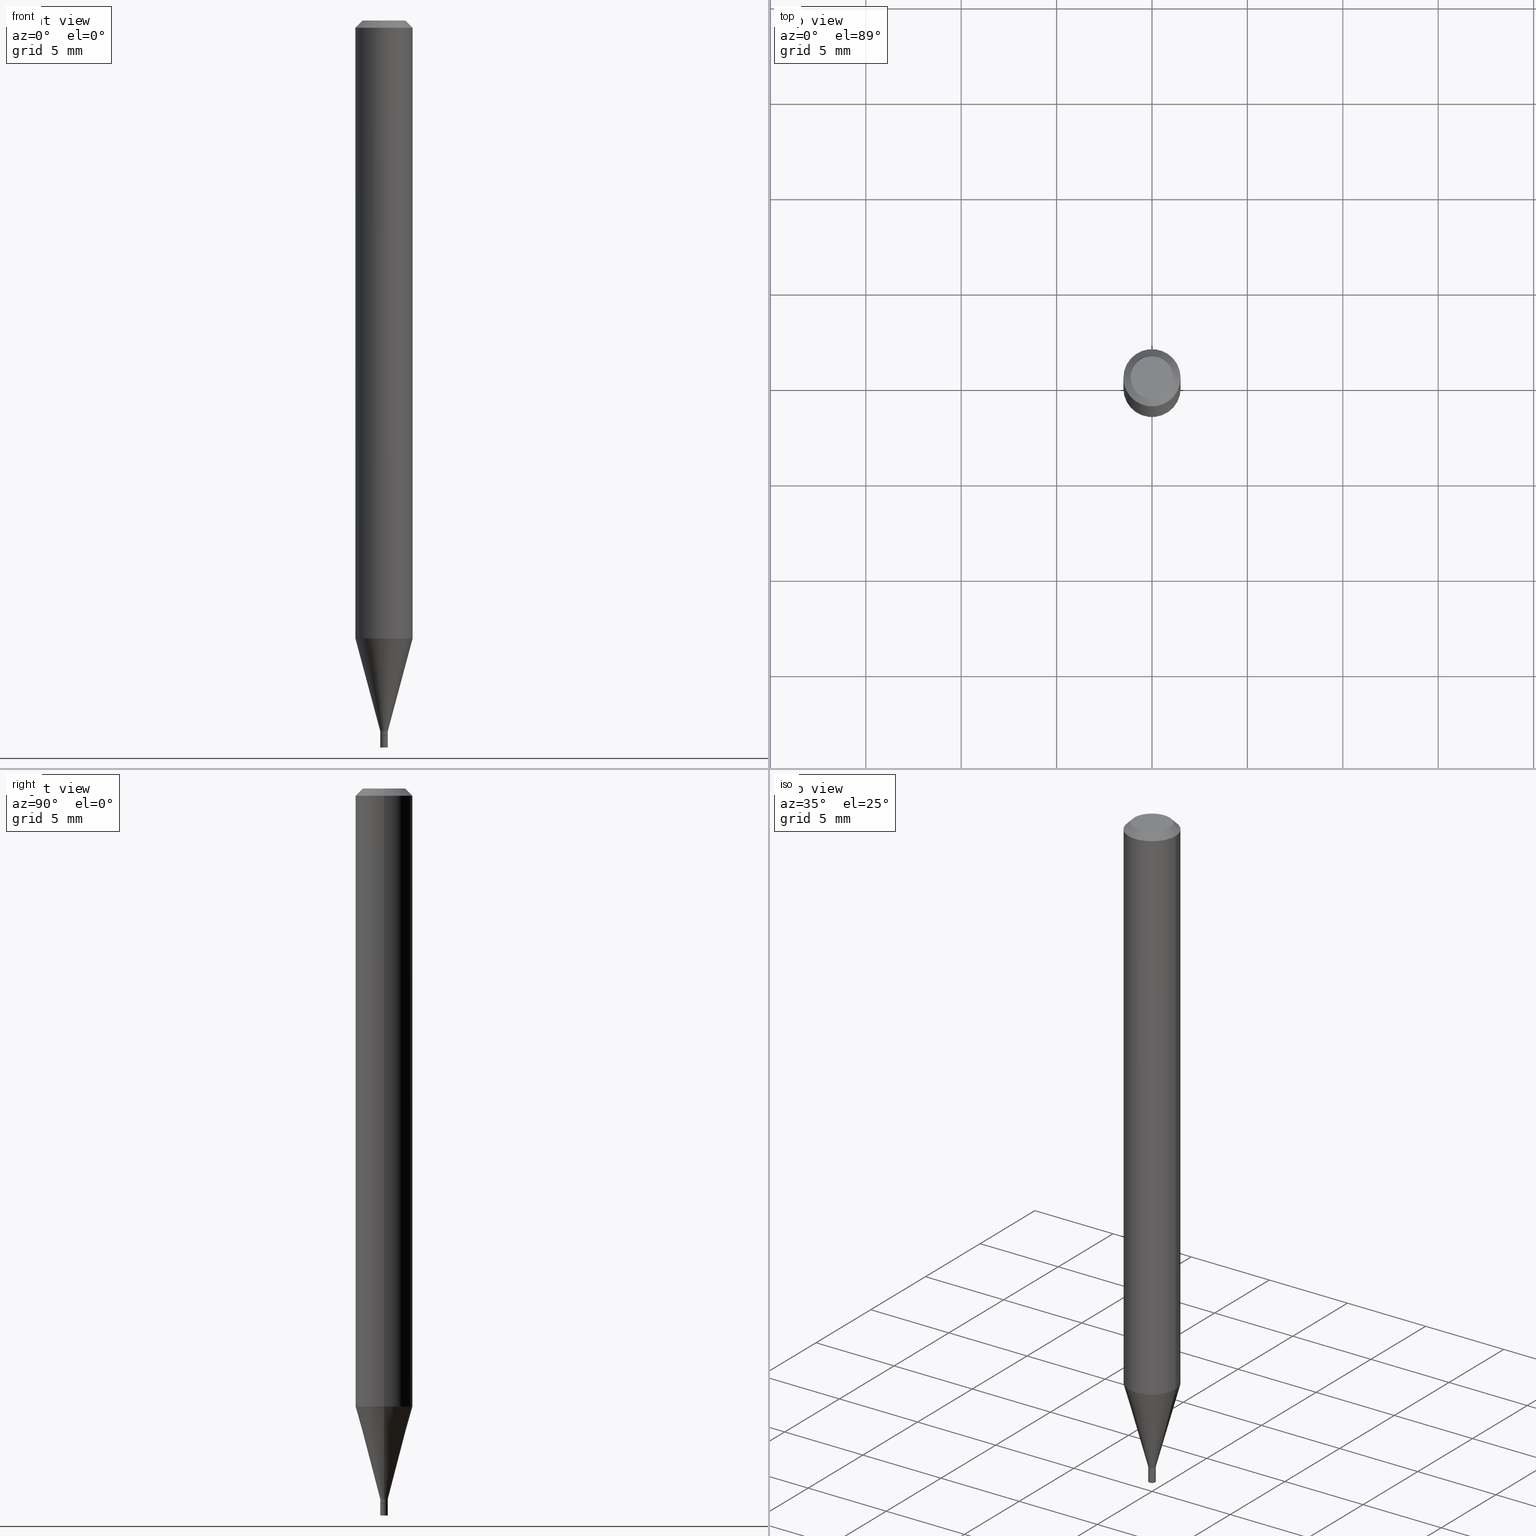
[diagram: canonical four-view strip — front | top / right | iso, engineering-drawing reading convention]
A machine part, canonical four-view strip (front | top / right | iso — engineering-drawing reading convention). The complete STEP part file that produces these views, byte-faithful:
ISO-10303-21;
HEADER;
FILE_DESCRIPTION (( 'STEP AP203' ),
    '1' );
FILE_NAME ('02803.STEP',
    '2024-03-18T21:40:27',
    ( '' ),
    ( '' ),
    'SwSTEP 2.0',
    'SolidWorks 2023',
    '' );
FILE_SCHEMA (( 'CONFIG_CONTROL_DESIGN' ));
ENDSEC;

DATA;
#1 = DIRECTION ( 'NONE',  ( 1.000000000000000000, -6.982962677686273021E-15, 0.000000000000000000 ) ) ;
#2 = CC_DESIGN_SECURITY_CLASSIFICATION ( #339, ( #188 ) ) ;
#3 = AXIS2_PLACEMENT_3D ( 'NONE', #393, #230, #124 ) ;
#4 = ORIENTED_EDGE ( 'NONE', *, *, #37, .F. ) ;
#5 = DIRECTION ( 'NONE',  ( -2.445468806185136597E-29, 3.491481338843145583E-15, 1.000000000000000000 ) ) ;
#6 = EDGE_CURVE ( 'NONE', #281, #309, #338, .T. ) ;
#7 = FACE_OUTER_BOUND ( 'NONE', #302, .T. ) ;
#8 = EDGE_LOOP ( 'NONE', ( #165, #24 ) ) ;
#9 = FACE_OUTER_BOUND ( 'NONE', #226, .T. ) ;
#10 = CARTESIAN_POINT ( 'NONE',  ( 0.007849999999999919542, -5.173327899763888780E-15, -1.466000000000000192 ) ) ;
#11 = DIRECTION ( 'NONE',  ( -2.438088387897960049E-29, 3.491481338843145188E-15, 1.000000000000000000 ) ) ;
#12 = ORIENTED_EDGE ( 'NONE', *, *, #256, .F. ) ;
#13 = CARTESIAN_POINT ( 'NONE',  ( -0.05904999999999999832, 3.599717260347268549E-16, -0.01499999999999999944 ) ) ;
#14 = LOCAL_TIME ( 17, 40, 27.00000000000000000, #141 ) ;
#15 = CARTESIAN_POINT ( 'NONE',  ( 0.000000000000000000, 0.000000000000000000, 0.000000000000000000 ) ) ;
#16 = EDGE_CURVE ( 'NONE', #135, #127, #239, .T. ) ;
#17 = ORIENTED_EDGE ( 'NONE', *, *, #349, .T. ) ;
#18 = DIRECTION ( 'NONE',  ( 1.000000000000000000, -6.982962677686266711E-15, 0.000000000000000000 ) ) ;
#19 = LINE ( 'NONE', #325, #287 ) ;
#20 = EDGE_LOOP ( 'NONE', ( #17, #375, #168, #12 ) ) ;
#21 = DIRECTION ( 'NONE',  ( -2.445468806185136877E-29, 3.491481338843145188E-15, 1.000000000000000000 ) ) ;
#22 = CARTESIAN_POINT ( 'NONE',  ( 3.576687321579069994E-29, -5.368277968210015545E-15, -1.500000000000000222 ) ) ;
#23 = CIRCLE ( 'NONE', #44, 0.05904999999999999832 ) ;
#24 = ORIENTED_EDGE ( 'NONE', *, *, #320, .F. ) ;
#25 = ADVANCED_FACE ( 'NONE', ( #412 ), #137, .T. ) ;
#26 = CARTESIAN_POINT ( 'NONE',  ( 3.668203209277704895E-29, -5.237222008264718177E-15, -1.500000000000000222 ) ) ;
#27 = DIRECTION ( 'NONE',  ( -2.438088387897960049E-29, 3.491481338843145188E-15, 1.000000000000000000 ) ) ;
#28 = CARTESIAN_POINT ( 'NONE',  ( 3.585057269867410650E-29, -5.118511642744051990E-15, -1.466000000000000192 ) ) ;
#29 = DIRECTION ( 'NONE',  ( 1.000000000000000000, -6.982962677686261189E-15, 0.000000000000000000 ) ) ;
#30 = AXIS2_PLACEMENT_3D ( 'NONE', #228, #191, #45 ) ;
#31 = AXIS2_PLACEMENT_3D ( 'NONE', #359, #43, #262 ) ;
#32 = SECURITY_CLASSIFICATION_LEVEL ( 'unclassified' ) ;
#33 = DATE_TIME_ROLE ( 'creation_date' ) ;
#34 = DIRECTION ( 'NONE',  ( 1.000000000000000000, -6.982962677686261189E-15, 0.000000000000000000 ) ) ;
#35 = PERSON_AND_ORGANIZATION ( #414, #96 ) ;
#36 = CIRCLE ( 'NONE', #312, 0.007849999999999999339 ) ;
#37 = EDGE_CURVE ( 'NONE', #390, #127, #278, .T. ) ;
#38 = CARTESIAN_POINT ( 'NONE',  ( 3.610490145451736212E-29, -5.154823048668020053E-15, -1.476400000000000157 ) ) ;
#39 = CARTESIAN_POINT ( 'NONE',  ( -0.007849999999999919542, -5.062734037986884746E-15, -1.466000000000000192 ) ) ;
#40 = EDGE_CURVE ( 'NONE', #293, #87, #254, .T. ) ;
#41 = CONICAL_SURFACE ( 'NONE', #54, 0.05904999999999999832, 0.7853981633974522758 ) ;
#42 = ORIENTED_EDGE ( 'NONE', *, *, #142, .F. ) ;
#43 = DIRECTION ( 'NONE',  ( -2.445468806185136597E-29, 3.491481338843145583E-15, 1.000000000000000000 ) ) ;
#44 = AXIS2_PLACEMENT_3D ( 'NONE', #327, #442, #18 ) ;
#45 = DIRECTION ( 'NONE',  ( 1.000000000000000000, -6.982962677686267499E-15, 4.876176775795936353E-29 ) ) ;
#46 = ORIENTED_EDGE ( 'NONE', *, *, #179, .F. ) ;
#47 = LENGTH_MEASURE_WITH_UNIT ( LENGTH_MEASURE( 0.02539999999999999897 ), #88 );
#48 = DIRECTION ( 'NONE',  ( -2.445468806185136877E-29, 3.491481338843145188E-15, 1.000000000000000000 ) ) ;
#49 = ORIENTED_EDGE ( 'NONE', *, *, #40, .F. ) ;
#50 = DIRECTION ( 'NONE',  ( -0.7071067811865503483, 2.468850131082286248E-15, -0.7071067811865446862 ) ) ;
#51 = LINE ( 'NONE', #232, #406 ) ;
#52 = ORIENTED_EDGE ( 'NONE', *, *, #6, .T. ) ;
#53 = DIRECTION ( 'NONE',  ( -0.2588190451025214611, 5.211531920934551042E-15, 0.9659258262890682012 ) ) ;
#54 = AXIS2_PLACEMENT_3D ( 'NONE', #413, #379, #336 ) ;
#55 = LOCAL_TIME ( 17, 40, 27.00000000000000000, #334 ) ;
#56 = CC_DESIGN_PERSON_AND_ORGANIZATION_ASSIGNMENT ( #178, #464, ( #339 ) ) ;
#57 = CARTESIAN_POINT ( 'NONE',  ( 0.007849999999999999339, -5.292038265284556544E-15, -1.500000000000000222 ) ) ;
#58 = VERTEX_POINT ( 'NONE', #101 ) ;
#59 = CARTESIAN_POINT ( 'NONE',  ( -0.007849999999999921277, -5.097299703241432095E-15, -1.475900000000000212 ) ) ;
#60 = DIRECTION ( 'NONE',  ( -2.445468806185136877E-29, 3.491481338843145188E-15, 1.000000000000000000 ) ) ;
#61 = FACE_OUTER_BOUND ( 'NONE', #155, .T. ) ;
#62 = ADVANCED_FACE ( 'NONE', ( #416 ), #205, .F. ) ;
#63 = APPROVAL_PERSON_ORGANIZATION ( #317, #380, #147 ) ;
#64 = DIRECTION ( 'NONE',  ( 1.000000000000000000, -6.982962677686265922E-15, 4.888540261209747396E-29 ) ) ;
#65 = DIRECTION ( 'NONE',  ( -2.445468806185136597E-29, 3.491481338843145583E-15, 1.000000000000000000 ) ) ;
#66 = ADVANCED_FACE ( 'NONE', ( #61 ), #384, .T. ) ;
#67 = DATE_AND_TIME ( #244, #260 ) ;
#68 = ADVANCED_BREP_SHAPE_REPRESENTATION ( '02803', ( #459, #146, #181 ), #288 ) ;
#69 = CARTESIAN_POINT ( 'NONE',  ( 0.007849999999999999339, -5.209639305687857631E-15, -1.476400000000000157 ) ) ;
#70 = APPROVAL ( #388, 'UNSPECIFIED' ) ;
#71 = CIRCLE ( 'NONE', #120, 0.007849999999999921277 ) ;
#72 = APPROVAL_DATE_TIME ( #314, #371 ) ;
#73 = APPROVAL_STATUS ( 'not_yet_approved' ) ;
#74 = CARTESIAN_POINT ( 'NONE',  ( 0.007349999999999998895, -5.206147824349013835E-15, -1.476400000000000157 ) ) ;
#75 = APPLICATION_PROTOCOL_DEFINITION ( 'international standard', 'config_control_design', 1994, #443 ) ;
#76 = EDGE_CURVE ( 'NONE', #308, #192, #382, .T. ) ;
#77 = AXIS2_PLACEMENT_3D ( 'NONE', #26, #457, #415 ) ;
#78 = ORIENTED_EDGE ( 'NONE', *, *, #420, .F. ) ;
#79 = EDGE_CURVE ( 'NONE', #87, #293, #427, .T. ) ;
#80 = ORIENTED_EDGE ( 'NONE', *, *, #343, .F. ) ;
#81 = DIRECTION ( 'NONE',  ( 1.000000000000000000, -6.982962677686273021E-15, 0.000000000000000000 ) ) ;
#82 = ADVANCED_FACE ( 'NONE', ( #340 ), #41, .T. ) ;
#83 = CLOSED_SHELL ( 'NONE', ( #132, #307, #25, #66, #337, #378, #169, #82, #356, #148, #463, #241 ) ) ;
#84 = ORIENTED_EDGE ( 'NONE', *, *, #104, .F. ) ;
#85 = LOCAL_TIME ( 17, 40, 27.00000000000000000, #350 ) ;
#86 = LINE ( 'NONE', #362, #437 ) ;
#87 = VERTEX_POINT ( 'NONE', #102 ) ;
#88 =( LENGTH_UNIT ( ) NAMED_UNIT ( * ) SI_UNIT ( $, .METRE. ) );
#89 = APPROVAL_DATE_TIME ( #398, #70 ) ;
#90 = CARTESIAN_POINT ( 'NONE',  ( 0.000000000000000000, 0.000000000000000000, 0.000000000000000000 ) ) ;
#91 = ORIENTED_EDGE ( 'NONE', *, *, #104, .T. ) ;
#92 = CARTESIAN_POINT ( 'NONE',  ( 0.05904999999999998445, -4.863699838449076344E-15, -1.274918998652473823 ) ) ;
#93 = CARTESIAN_POINT ( 'NONE',  ( 0.05904999999999999832, -4.647161662000212105E-16, -0.01499999999999999944 ) ) ;
#94 = ORIENTED_EDGE ( 'NONE', *, *, #367, .T. ) ;
#95 = VECTOR ( 'NONE', #303, 39.37007874015748143 ) ;
#96 = ORGANIZATION ( 'UNSPECIFIED', 'UNSPECIFIED', '' ) ;
#97 = SHAPE_DEFINITION_REPRESENTATION ( #449, #68 ) ;
#98 = CARTESIAN_POINT ( 'NONE',  ( 0.007849999999999919542, -5.481625701983663571E-17, 3.827798768999770704E-31 ) ) ;
#99 = DIRECTION ( 'NONE',  ( 1.000000000000000000, -6.982962677686266711E-15, 4.876176775795936353E-29 ) ) ;
#100 = DIRECTION ( 'NONE',  ( 1.000000000000000000, -6.982962677686265922E-15, 4.876176775795935793E-29 ) ) ;
#101 = CARTESIAN_POINT ( 'NONE',  ( -0.007849999999999999339, -5.140244923709201871E-15, -1.476400000000000157 ) ) ;
#102 = CARTESIAN_POINT ( 'NONE',  ( -0.007349999999999998895, -5.099948930415542507E-15, -1.476400000000000157 ) ) ;
#103 = CARTESIAN_POINT ( 'NONE',  ( 2.842653332627866660E-45, -4.058555577796679728E-31, -1.162416517208545723E-16 ) ) ;
#104 = EDGE_CURVE ( 'NONE', #261, #58, #107, .T. ) ;
#105 = DIRECTION ( 'NONE',  ( -2.445468806185136597E-29, 3.491481338843145583E-15, 1.000000000000000000 ) ) ;
#106 = APPROVAL_STATUS ( 'not_yet_approved' ) ;
#107 = CIRCLE ( 'NONE', #360, 0.007849999999999999339 ) ;
#108 = VECTOR ( 'NONE', #53, 39.37007874015747433 ) ;
#109 = DATE_AND_TIME ( #421, #14 ) ;
#110 = DIRECTION ( 'NONE',  ( -2.445468806185136597E-29, 3.491481338843145583E-15, 1.000000000000000000 ) ) ;
#111 = VERTEX_POINT ( 'NONE', #59 ) ;
#112 = CLOSED_SHELL ( 'NONE', ( #248, #62, #156, #439 ) ) ;
#113 = AXIS2_PLACEMENT_3D ( 'NONE', #153, #119, #221 ) ;
#114 = FACE_OUTER_BOUND ( 'NONE', #257, .T. ) ;
#115 = ORIENTED_EDGE ( 'NONE', *, *, #266, .T. ) ;
#116 = CARTESIAN_POINT ( 'NONE',  ( 0.007849999999999921277, -5.207893565018435339E-15, -1.475900000000000212 ) ) ;
#117 = CARTESIAN_POINT ( 'NONE',  ( 0.007849999999999919542, -5.173327899763888780E-15, -1.466000000000000192 ) ) ;
#118 = EDGE_LOOP ( 'NONE', ( #431, #363, #445, #458 ) ) ;
#119 = DIRECTION ( 'NONE',  ( -2.445468806185136597E-29, 3.491481338843145583E-15, 1.000000000000000000 ) ) ;
#120 = AXIS2_PLACEMENT_3D ( 'NONE', #357, #294, #267 ) ;
#121 = FACE_OUTER_BOUND ( 'NONE', #284, .T. ) ;
#122 = CARTESIAN_POINT ( 'NONE',  ( 0.007349999999999998895, -5.206147824349013835E-15, -1.476400000000000157 ) ) ;
#123 = ORIENTED_EDGE ( 'NONE', *, *, #352, .T. ) ;
#124 = DIRECTION ( 'NONE',  ( 1.000000000000000000, -6.982962677686327453E-15, 0.000000000000000000 ) ) ;
#125 = DIRECTION ( 'NONE',  ( -2.445468806185136597E-29, 3.491481338843145583E-15, 1.000000000000000000 ) ) ;
#126 = CC_DESIGN_PERSON_AND_ORGANIZATION_ASSIGNMENT ( #385, #184, ( #376 ) ) ;
#127 = VERTEX_POINT ( 'NONE', #93 ) ;
#128 = DIRECTION ( 'NONE',  ( 2.438088387897960049E-29, -3.491481338843145188E-15, -1.000000000000000000 ) ) ;
#129 = CARTESIAN_POINT ( 'NONE',  ( -0.05904999999999999832, 4.195754854663391478E-16, -2.904631170795521892E-30 ) ) ;
#130 = ORIENTED_EDGE ( 'NONE', *, *, #349, .F. ) ;
#131 = CONICAL_SURFACE ( 'NONE', #31, 0.007349999999999998895, 0.7853981633974718157 ) ;
#132 = ADVANCED_FACE ( 'NONE', ( #133 ), #373, .T. ) ;
#133 = FACE_OUTER_BOUND ( 'NONE', #20, .T. ) ;
#134 = VERTEX_POINT ( 'NONE', #57 ) ;
#135 = VERTEX_POINT ( 'NONE', #323 ) ;
#136 = CARTESIAN_POINT ( 'NONE',  ( 3.668203209277705088E-31, -5.237222008264718399E-17, -0.01499999999999999944 ) ) ;
#137 = CONICAL_SURFACE ( 'NONE', #372, 0.05904999999999999832, 0.7853981633974522758 ) ;
#138 = VECTOR ( 'NONE', #160, 39.37007874015748143 ) ;
#139 = EDGE_LOOP ( 'NONE', ( #400, #123, #274, #189 ) ) ;
#140 = CARTESIAN_POINT ( 'NONE',  ( 3.668203209277704895E-29, -5.237222008264718177E-15, -1.500000000000000222 ) ) ;
#141 = COORDINATED_UNIVERSAL_TIME_OFFSET ( 5, 0, .BEHIND. ) ;
#142 = EDGE_CURVE ( 'NONE', #111, #192, #86, .T. ) ;
#143 = VECTOR ( 'NONE', #60, 39.37007874015748143 ) ;
#144 = AXIS2_PLACEMENT_3D ( 'NONE', #331, #128, #300 ) ;
#145 = CALENDAR_DATE ( 2024, 18, 3 ) ;
#146 = MANIFOLD_SOLID_BREP ( 'Body-Move/Copy2[2]', #83 ) ;
#147 = APPROVAL_ROLE ( '' ) ;
#148 = ADVANCED_FACE ( 'NONE', ( #7 ), #454, .F. ) ;
#149 = AXIS2_PLACEMENT_3D ( 'NONE', #224, #407, #301 ) ;
#150 = APPROVAL_PERSON_ORGANIZATION ( #249, #70, #213 ) ;
#151 = CARTESIAN_POINT ( 'NONE',  ( -0.007849999999999999339, -5.140244923709201871E-15, -1.500000000000000222 ) ) ;
#152 = ORIENTED_EDGE ( 'NONE', *, *, #252, .T. ) ;
#153 = CARTESIAN_POINT ( 'NONE',  ( 2.842653332627866660E-45, -4.058555577796679728E-31, -1.162416517208545723E-16 ) ) ;
#154 = DIRECTION ( 'NONE',  ( -2.445468806185136597E-29, 3.491481338843145583E-15, 1.000000000000000000 ) ) ;
#155 = EDGE_LOOP ( 'NONE', ( #321, #152, #365, #4 ) ) ;
#156 = ADVANCED_FACE ( 'NONE', ( #377 ), #194, .T. ) ;
#157 = CYLINDRICAL_SURFACE ( 'NONE', #233, 0.05904999999999999832 ) ;
#158 = AXIS2_PLACEMENT_3D ( 'NONE', #22, #27, #237 ) ;
#159 = ORIENTED_EDGE ( 'NONE', *, *, #208, .T. ) ;
#160 = DIRECTION ( 'NONE',  ( 0.7071067811865503483, -7.319954787623265512E-15, -0.7071067811865446862 ) ) ;
#161 = CIRCLE ( 'NONE', #319, 0.05904999999999999832 ) ;
#162 = CC_DESIGN_PERSON_AND_ORGANIZATION_ASSIGNMENT ( #35, #347, ( #188 ) ) ;
#163 = DIRECTION ( 'NONE',  ( -2.445468806185136597E-29, 3.491481338843145583E-15, 1.000000000000000000 ) ) ;
#164 = DIRECTION ( 'NONE',  ( -2.445468806185136597E-29, 3.491481338843145583E-15, 1.000000000000000000 ) ) ;
#165 = ORIENTED_EDGE ( 'NONE', *, *, #266, .F. ) ;
#166 = DIRECTION ( 'NONE',  ( 1.000000000000000000, -6.982962677686274599E-15, 0.000000000000000000 ) ) ;
#167 = LINE ( 'NONE', #129, #272 ) ;
#168 = ORIENTED_EDGE ( 'NONE', *, *, #76, .F. ) ;
#169 = ADVANCED_FACE ( 'NONE', ( #259 ), #157, .T. ) ;
#170 = DIRECTION ( 'NONE',  ( -2.445468806185136877E-29, 3.491481338843145188E-15, 1.000000000000000000 ) ) ;
#171 = CARTESIAN_POINT ( 'NONE',  ( 3.610490145451736212E-29, -5.154823048668020053E-15, -1.476400000000000157 ) ) ;
#172 = CC_DESIGN_PERSON_AND_ORGANIZATION_ASSIGNMENT ( #180, #313, ( #204 ) ) ;
#173 = VECTOR ( 'NONE', #21, 39.37007874015748143 ) ;
#174 = ORIENTED_EDGE ( 'NONE', *, *, #16, .T. ) ;
#175 = CARTESIAN_POINT ( 'NONE',  ( 3.585057269867410650E-29, -5.118511642744051990E-15, -1.466000000000000192 ) ) ;
#176 = CARTESIAN_POINT ( 'NONE',  ( 0.05904999999999999832, -4.123439461173740327E-16, 2.879382386107500220E-30 ) ) ;
#177 = AXIS2_PLACEMENT_3D ( 'NONE', #190, #322, #196 ) ;
#178 = PERSON_AND_ORGANIZATION ( #414, #96 ) ;
#179 = EDGE_CURVE ( 'NONE', #192, #308, #345, .T. ) ;
#180 = PERSON_AND_ORGANIZATION ( #414, #96 ) ;
#181 = AXIS2_PLACEMENT_3D ( 'NONE', #210, #355, #348 ) ;
#182 = PERSON_AND_ORGANIZATION_ROLE ( 'design_supplier' ) ;
#183 = EDGE_CURVE ( 'NONE', #308, #390, #399, .T. ) ;
#184 = PERSON_AND_ORGANIZATION_ROLE ( 'design_owner' ) ;
#185 = DIRECTION ( 'NONE',  ( 1.000000000000000000, -6.982962677686327453E-15, 0.000000000000000000 ) ) ;
#186 = DIRECTION ( 'NONE',  ( -2.445468806185136597E-29, 3.491481338843145583E-15, 1.000000000000000000 ) ) ;
#187 = AXIS2_PLACEMENT_3D ( 'NONE', #456, #341, #277 ) ;
#188 = PRODUCT_DEFINITION_FORMATION_WITH_SPECIFIED_SOURCE ( 'ANY', '', #376, .NOT_KNOWN. ) ;
#189 = ORIENTED_EDGE ( 'NONE', *, *, #16, .F. ) ;
#190 = CARTESIAN_POINT ( 'NONE',  ( 3.075995059520799729E-16, 0.04404999999999999888, -2.119205788364678519E-16 ) ) ;
#191 = DIRECTION ( 'NONE',  ( -2.445468806185136597E-29, 3.491481338843145583E-15, 1.000000000000000000 ) ) ;
#192 = VERTEX_POINT ( 'NONE', #335 ) ;
#193 =( CONVERSION_BASED_UNIT ( 'INCH', #47 ) LENGTH_UNIT ( ) NAMED_UNIT ( #282 ) );
#194 = CYLINDRICAL_SURFACE ( 'NONE', #216, 0.007849999999999999339 ) ;
#195 = ORIENTED_EDGE ( 'NONE', *, *, #208, .F. ) ;
#196 = DIRECTION ( 'NONE',  ( -1.000000000000000000, 6.982962677686265922E-15, -4.876176775795935793E-29 ) ) ;
#197 = CYLINDRICAL_SURFACE ( 'NONE', #353, 0.007849999999999999339 ) ;
#198 = AXIS2_PLACEMENT_3D ( 'NONE', #240, #276, #418 ) ;
#199 = ORIENTED_EDGE ( 'NONE', *, *, #256, .T. ) ;
#200 = CARTESIAN_POINT ( 'NONE',  ( 3.117774641617414915E-29, -4.451355892331702213E-15, -1.274918998652473823 ) ) ;
#201 = FACE_OUTER_BOUND ( 'NONE', #220, .T. ) ;
#202 = ORIENTED_EDGE ( 'NONE', *, *, #76, .T. ) ;
#203 = DIRECTION ( 'NONE',  ( -2.445468806185136597E-29, 3.491481338843145583E-15, 1.000000000000000000 ) ) ;
#204 = PRODUCT_DEFINITION ( 'UNKNOWN', '', #188, #430 ) ;
#205 = PLANE ( 'NONE',  #158 ) ;
#206 = CARTESIAN_POINT ( 'NONE',  ( 0.000000000000000000, 0.000000000000000000, 0.000000000000000000 ) ) ;
#207 = DIRECTION ( 'NONE',  ( -2.445468806185136597E-29, 3.491481338843145583E-15, 1.000000000000000000 ) ) ;
#208 = EDGE_CURVE ( 'NONE', #450, #58, #364, .T. ) ;
#209 = DIRECTION ( 'NONE',  ( -2.445468806185136597E-29, 3.491481338843145583E-15, 1.000000000000000000 ) ) ;
#210 = CARTESIAN_POINT ( 'NONE',  ( 0.000000000000000000, 0.000000000000000000, 0.000000000000000000 ) ) ;
#211 = CIRCLE ( 'NONE', #3, 0.007849999999999999339 ) ;
#212 = EDGE_CURVE ( 'NONE', #87, #111, #19, .T. ) ;
#213 = APPROVAL_ROLE ( '' ) ;
#214 = APPLICATION_CONTEXT ( 'configuration controlled 3d designs of mechanical parts and assemblies' ) ;
#215 = APPLICATION_PROTOCOL_DEFINITION ( 'international standard', 'config_control_design', 1994, #214 ) ;
#216 = AXIS2_PLACEMENT_3D ( 'NONE', #411, #154, #292 ) ;
#217 = AXIS2_PLACEMENT_3D ( 'NONE', #270, #223, #81 ) ;
#218 = ORIENTED_EDGE ( 'NONE', *, *, #446, .T. ) ;
#219 = FACE_OUTER_BOUND ( 'NONE', #238, .T. ) ;
#220 = EDGE_LOOP ( 'NONE', ( #115, #159, #84, #342 ) ) ;
#221 = DIRECTION ( 'NONE',  ( 1.000000000000000000, -6.982962677686265922E-15, 4.888540261209747396E-29 ) ) ;
#222 = ORIENTED_EDGE ( 'NONE', *, *, #183, .F. ) ;
#223 = DIRECTION ( 'NONE',  ( -2.445468806185136597E-29, 3.491481338843145583E-15, 1.000000000000000000 ) ) ;
#224 = CARTESIAN_POINT ( 'NONE',  ( 3.585057269867410650E-29, -5.118511642744051990E-15, -1.466000000000000192 ) ) ;
#225 = PRODUCT_RELATED_PRODUCT_CATEGORY ( 'detail', '', ( #376 ) ) ;
#226 = EDGE_LOOP ( 'NONE', ( #369, #52 ) ) ;
#227 =( NAMED_UNIT ( * ) PLANE_ANGLE_UNIT ( ) SI_UNIT ( $, .RADIAN. ) );
#228 = CARTESIAN_POINT ( 'NONE',  ( 0.000000000000000000, 0.000000000000000000, 0.000000000000000000 ) ) ;
#229 = ORIENTED_EDGE ( 'NONE', *, *, #231, .F. ) ;
#230 = DIRECTION ( 'NONE',  ( -2.445468806185136597E-29, 3.491481338843145583E-15, 1.000000000000000000 ) ) ;
#231 = EDGE_CURVE ( 'NONE', #293, #466, #440, .T. ) ;
#232 = CARTESIAN_POINT ( 'NONE',  ( 0.007849999999999999339, -5.481625701983718421E-17, 3.827798768999809240E-31 ) ) ;
#233 = AXIS2_PLACEMENT_3D ( 'NONE', #15, #203, #275 ) ;
#234 = EDGE_LOOP ( 'NONE', ( #195, #269, #253, #296 ) ) ;
#235 = DIRECTION ( 'NONE',  ( -2.445468806185136597E-29, 3.491481338843145583E-15, 1.000000000000000000 ) ) ;
#236 = DIRECTION ( 'NONE',  ( 2.445468806185136597E-29, -3.491481338843145583E-15, -1.000000000000000000 ) ) ;
#237 = DIRECTION ( 'NONE',  ( 1.000000000000000000, -6.982962677686265922E-15, 4.876176775795935793E-29 ) ) ;
#238 = EDGE_LOOP ( 'NONE', ( #78, #435, #333, #306 ) ) ;
#239 = CIRCLE ( 'NONE', #198, 0.05904999999999999832 ) ;
#240 = CARTESIAN_POINT ( 'NONE',  ( 3.668203209277705088E-31, -5.237222008264718399E-17, -0.01499999999999999944 ) ) ;
#241 = ADVANCED_FACE ( 'NONE', ( #268 ), #402, .T. ) ;
#242 = COORDINATED_UNIVERSAL_TIME_OFFSET ( 5, 0, .BEHIND. ) ;
#243 = EDGE_CURVE ( 'NONE', #134, #261, #51, .T. ) ;
#244 = CALENDAR_DATE ( 2024, 18, 3 ) ;
#245 = AXIS2_PLACEMENT_3D ( 'NONE', #103, #105, #64 ) ;
#246 = LOCAL_TIME ( 17, 40, 27.00000000000000000, #386 ) ;
#247 = DIRECTION ( 'NONE',  ( -2.445468806185136597E-29, 3.491481338843145583E-15, 1.000000000000000000 ) ) ;
#248 = ADVANCED_FACE ( 'NONE', ( #201 ), #197, .T. ) ;
#249 = PERSON_AND_ORGANIZATION ( #414, #96 ) ;
#250 = CARTESIAN_POINT ( 'NONE',  ( -0.04404999999999999888, 3.337856159934032167E-16, -1.162416517208568157E-16 ) ) ;
#251 = PERSON_AND_ORGANIZATION ( #414, #96 ) ;
#252 = EDGE_CURVE ( 'NONE', #397, #135, #167, .T. ) ;
#253 = ORIENTED_EDGE ( 'NONE', *, *, #243, .T. ) ;
#254 = CIRCLE ( 'NONE', #187, 0.007349999999999998895 ) ;
#255 = DIRECTION ( 'NONE',  ( -2.445468806185136597E-29, 3.491481338843145583E-15, 1.000000000000000000 ) ) ;
#256 = EDGE_CURVE ( 'NONE', #466, #308, #448, .T. ) ;
#257 = EDGE_LOOP ( 'NONE', ( #91, #441 ) ) ;
#258 = AXIS2_PLACEMENT_3D ( 'NONE', #206, #207, #99 ) ;
#259 = FACE_OUTER_BOUND ( 'NONE', #139, .T. ) ;
#260 = LOCAL_TIME ( 17, 40, 27.00000000000000000, #242 ) ;
#261 = VERTEX_POINT ( 'NONE', #69 ) ;
#262 = DIRECTION ( 'NONE',  ( 1.000000000000000000, -6.982962677686261189E-15, 0.000000000000000000 ) ) ;
#263 = CALENDAR_DATE ( 2024, 18, 3 ) ;
#264 = DIRECTION ( 'NONE',  ( 1.000000000000000000, -6.982962677686327453E-15, 0.000000000000000000 ) ) ;
#265 = ORIENTED_EDGE ( 'NONE', *, *, #420, .T. ) ;
#266 = EDGE_CURVE ( 'NONE', #134, #450, #280, .T. ) ;
#267 = DIRECTION ( 'NONE',  ( 1.000000000000000000, -6.982962677686273021E-15, 0.000000000000000000 ) ) ;
#268 = FACE_OUTER_BOUND ( 'NONE', #290, .T. ) ;
#269 = ORIENTED_EDGE ( 'NONE', *, *, #320, .T. ) ;
#270 = CARTESIAN_POINT ( 'NONE',  ( 3.609267411048643971E-29, -5.153077307998600127E-15, -1.475900000000000212 ) ) ;
#271 = CARTESIAN_POINT ( 'NONE',  ( -0.007849999999999999339, 5.577760475716785990E-17, -3.861364045850100522E-31 ) ) ;
#272 = VECTOR ( 'NONE', #298, 39.37007874015748143 ) ;
#273 = CONICAL_SURFACE ( 'NONE', #316, 0.007849999999999919542, 0.2617993877991501295 ) ;
#274 = ORIENTED_EDGE ( 'NONE', *, *, #37, .T. ) ;
#275 = DIRECTION ( 'NONE',  ( 1.000000000000000000, -6.982962677686266711E-15, 4.876176775795936353E-29 ) ) ;
#276 = DIRECTION ( 'NONE',  ( -2.445468806185136597E-29, 3.491481338843145583E-15, 1.000000000000000000 ) ) ;
#277 = DIRECTION ( 'NONE',  ( 1.000000000000000000, -6.982962677686261189E-15, 0.000000000000000000 ) ) ;
#278 = LINE ( 'NONE', #176, #143 ) ;
#279 = VECTOR ( 'NONE', #396, 39.37007874015747433 ) ;
#280 = CIRCLE ( 'NONE', #77, 0.007849999999999999339 ) ;
#281 = VERTEX_POINT ( 'NONE', #389 ) ;
#282 = DIMENSIONAL_EXPONENTS ( 1.000000000000000000, 0.000000000000000000, 0.000000000000000000, 0.000000000000000000, 0.000000000000000000, 0.000000000000000000, 0.000000000000000000 ) ;
#283 = DATE_TIME_ROLE ( 'classification_date' ) ;
#284 = EDGE_LOOP ( 'NONE', ( #202, #265, #383, #222 ) ) ;
#285 = DATE_AND_TIME ( #462, #85 ) ;
#286 = ORIENTED_EDGE ( 'NONE', *, *, #387, .T. ) ;
#287 = VECTOR ( 'NONE', #444, 39.37007874015748143 ) ;
#288 =( GEOMETRIC_REPRESENTATION_CONTEXT ( 3 ) GLOBAL_UNCERTAINTY_ASSIGNED_CONTEXT ( ( #425 ) ) GLOBAL_UNIT_ASSIGNED_CONTEXT ( ( #193, #227, #451 ) ) REPRESENTATION_CONTEXT ( 'NONE', 'WORKASPACE' ) );
#289 = FACE_OUTER_BOUND ( 'NONE', #118, .T. ) ;
#290 = EDGE_LOOP ( 'NONE', ( #42, #218, #199, #46 ) ) ;
#291 = CARTESIAN_POINT ( 'NONE',  ( -0.05904999999999998445, -4.031780406865363509E-15, -1.274918998652473823 ) ) ;
#292 = DIRECTION ( 'NONE',  ( 1.000000000000000000, -6.982962677686265922E-15, 4.876176775795935793E-29 ) ) ;
#293 = VERTEX_POINT ( 'NONE', #74 ) ;
#294 = DIRECTION ( 'NONE',  ( -2.445468806185136597E-29, 3.491481338843145583E-15, 1.000000000000000000 ) ) ;
#295 = CARTESIAN_POINT ( 'NONE',  ( 3.610490145451736212E-29, -5.154823048668020053E-15, -1.476400000000000157 ) ) ;
#296 = ORIENTED_EDGE ( 'NONE', *, *, #417, .F. ) ;
#297 = CARTESIAN_POINT ( 'NONE',  ( 3.585057269867410650E-29, -5.118511642744051990E-15, -1.466000000000000192 ) ) ;
#298 = DIRECTION ( 'NONE',  ( -2.445468806185136877E-29, 3.491481338843145188E-15, 1.000000000000000000 ) ) ;
#299 = EDGE_LOOP ( 'NONE', ( #330, #455, #130, #229 ) ) ;
#300 = DIRECTION ( 'NONE',  ( -1.000000000000000000, 6.982962677686265922E-15, -4.876176775795935793E-29 ) ) ;
#301 = DIRECTION ( 'NONE',  ( 1.000000000000000000, -6.982962677686274599E-15, 0.000000000000000000 ) ) ;
#302 = EDGE_LOOP ( 'NONE', ( #49, #424 ) ) ;
#303 = DIRECTION ( 'NONE',  ( 0.7071067811865642261, -2.468850131082431399E-15, 0.7071067811865309194 ) ) ;
#304 = AXIS2_PLACEMENT_3D ( 'NONE', #409, #209, #29 ) ;
#305 = CONICAL_SURFACE ( 'NONE', #460, 0.007349999999999998895, 0.7853981633974718157 ) ;
#306 = ORIENTED_EDGE ( 'NONE', *, *, #352, .F. ) ;
#307 = ADVANCED_FACE ( 'NONE', ( #354 ), #305, .T. ) ;
#308 = VERTEX_POINT ( 'NONE', #10 ) ;
#309 = VERTEX_POINT ( 'NONE', #250 ) ;
#310 = DIRECTION ( 'NONE',  ( 1.000000000000000000, -6.982962677686274599E-15, 0.000000000000000000 ) ) ;
#311 = VECTOR ( 'NONE', #48, 39.37007874015748143 ) ;
#312 = AXIS2_PLACEMENT_3D ( 'NONE', #140, #164, #185 ) ;
#313 = PERSON_AND_ORGANIZATION_ROLE ( 'creator' ) ;
#314 = DATE_AND_TIME ( #145, #246 ) ;
#315 = PERSON_AND_ORGANIZATION ( #414, #96 ) ;
#316 = AXIS2_PLACEMENT_3D ( 'NONE', #297, #5, #166 ) ;
#317 = PERSON_AND_ORGANIZATION ( #414, #96 ) ;
#318 = CARTESIAN_POINT ( 'NONE',  ( 0.05904999999999999832, -4.574846268510561447E-16, -0.01499999999999999944 ) ) ;
#319 = AXIS2_PLACEMENT_3D ( 'NONE', #200, #186, #1 ) ;
#320 = EDGE_CURVE ( 'NONE', #450, #134, #36, .T. ) ;
#321 = ORIENTED_EDGE ( 'NONE', *, *, #433, .T. ) ;
#322 = DIRECTION ( 'NONE',  ( 2.438088387897960049E-29, -3.491481338843145188E-15, -1.000000000000000000 ) ) ;
#323 = CARTESIAN_POINT ( 'NONE',  ( -0.05904999999999999832, -1.832288570740835350E-15, -0.01499999999999999944 ) ) ;
#324 = EDGE_LOOP ( 'NONE', ( #394, #326, #403, #174 ) ) ;
#325 = CARTESIAN_POINT ( 'NONE',  ( -0.007349999999999998895, -5.102598157589652919E-15, -1.476400000000000157 ) ) ;
#326 = ORIENTED_EDGE ( 'NONE', *, *, #391, .F. ) ;
#327 = CARTESIAN_POINT ( 'NONE',  ( 3.668203209277705088E-31, -5.237222008264718399E-17, -0.01499999999999999944 ) ) ;
#328 = CARTESIAN_POINT ( 'NONE',  ( 0.000000000000000000, 0.000000000000000000, 0.000000000000000000 ) ) ;
#329 = VECTOR ( 'NONE', #50, 39.37007874015748143 ) ;
#330 = ORIENTED_EDGE ( 'NONE', *, *, #40, .T. ) ;
#331 = CARTESIAN_POINT ( 'NONE',  ( 5.481625701987328692E-17, 0.007849999999994843741, -1.476400000000000157 ) ) ;
#332 = DIRECTION ( 'NONE',  ( 1.000000000000000000, -6.982962677686265922E-15, 4.876176775795935793E-29 ) ) ;
#333 = ORIENTED_EDGE ( 'NONE', *, *, #183, .T. ) ;
#334 = COORDINATED_UNIVERSAL_TIME_OFFSET ( 5, 0, .BEHIND. ) ;
#335 = CARTESIAN_POINT ( 'NONE',  ( -0.007849999999999919542, -4.547257222426124522E-15, -1.466000000000000192 ) ) ;
#336 = DIRECTION ( 'NONE',  ( -1.000000000000000000, 6.982962677686266711E-15, 0.000000000000000000 ) ) ;
#337 = ADVANCED_FACE ( 'NONE', ( #121 ), #408, .T. ) ;
#338 = CIRCLE ( 'NONE', #245, 0.04404999999999999888 ) ;
#339 = SECURITY_CLASSIFICATION ( '', '', #32 ) ;
#340 = FACE_OUTER_BOUND ( 'NONE', #324, .T. ) ;
#341 = DIRECTION ( 'NONE',  ( -2.445468806185136597E-29, 3.491481338843145583E-15, 1.000000000000000000 ) ) ;
#342 = ORIENTED_EDGE ( 'NONE', *, *, #243, .F. ) ;
#343 = EDGE_CURVE ( 'NONE', #309, #135, #429, .T. ) ;
#344 = APPROVAL_DATE_TIME ( #67, #380 ) ;
#345 = CIRCLE ( 'NONE', #149, 0.007849999999999919542 ) ;
#346 = CC_DESIGN_APPROVAL ( #371, ( #188 ) ) ;
#347 = PERSON_AND_ORGANIZATION_ROLE ( 'creator' ) ;
#348 = DIRECTION ( 'NONE',  ( 1.000000000000000000, 0.000000000000000000, 0.000000000000000000 ) ) ;
#349 = EDGE_CURVE ( 'NONE', #466, #111, #71, .T. ) ;
#350 = COORDINATED_UNIVERSAL_TIME_OFFSET ( 5, 0, .BEHIND. ) ;
#351 = AXIS2_PLACEMENT_3D ( 'NONE', #295, #11, #100 ) ;
#352 = EDGE_CURVE ( 'NONE', #397, #390, #392, .T. ) ;
#353 = AXIS2_PLACEMENT_3D ( 'NONE', #328, #163, #332 ) ;
#354 = FACE_OUTER_BOUND ( 'NONE', #299, .T. ) ;
#355 = DIRECTION ( 'NONE',  ( 0.000000000000000000, 0.000000000000000000, 1.000000000000000000 ) ) ;
#356 = ADVANCED_FACE ( 'NONE', ( #9 ), #447, .F. ) ;
#357 = CARTESIAN_POINT ( 'NONE',  ( 3.609267411048643971E-29, -5.153077307998600127E-15, -1.475900000000000212 ) ) ;
#358 = EDGE_LOOP ( 'NONE', ( #381, #94, #286, #80 ) ) ;
#359 = CARTESIAN_POINT ( 'NONE',  ( 3.610490145451736212E-29, -5.154823048668020053E-15, -1.476400000000000157 ) ) ;
#360 = AXIS2_PLACEMENT_3D ( 'NONE', #171, #125, #264 ) ;
#361 = AXIS2_PLACEMENT_3D ( 'NONE', #401, #255, #404 ) ;
#362 = CARTESIAN_POINT ( 'NONE',  ( -0.007849999999999919542, 5.577760475716729290E-17, -3.861364045850061986E-31 ) ) ;
#363 = ORIENTED_EDGE ( 'NONE', *, *, #79, .T. ) ;
#364 = LINE ( 'NONE', #271, #311 ) ;
#365 = ORIENTED_EDGE ( 'NONE', *, *, #387, .F. ) ;
#366 = DIRECTION ( 'NONE',  ( 1.000000000000000000, -6.982962677686274599E-15, 0.000000000000000000 ) ) ;
#367 = EDGE_CURVE ( 'NONE', #281, #127, #436, .T. ) ;
#368 = DIRECTION ( 'NONE',  ( 1.000000000000000000, -6.982962677686267499E-15, 4.876176775795936353E-29 ) ) ;
#369 = ORIENTED_EDGE ( 'NONE', *, *, #391, .T. ) ;
#370 = LINE ( 'NONE', #39, #108 ) ;
#371 = APPROVAL ( #106, 'UNSPECIFIED' ) ;
#372 = AXIS2_PLACEMENT_3D ( 'NONE', #136, #236, #461 ) ;
#373 = CYLINDRICAL_SURFACE ( 'NONE', #30, 0.007849999999999919542 ) ;
#374 = AXIS2_PLACEMENT_3D ( 'NONE', #28, #110, #366 ) ;
#375 = ORIENTED_EDGE ( 'NONE', *, *, #142, .T. ) ;
#376 = PRODUCT ( '02803', '02803', '', ( #419 ) ) ;
#377 = FACE_OUTER_BOUND ( 'NONE', #234, .T. ) ;
#378 = ADVANCED_FACE ( 'NONE', ( #219 ), #273, .T. ) ;
#379 = DIRECTION ( 'NONE',  ( 2.445468806185136597E-29, -3.491481338843145583E-15, -1.000000000000000000 ) ) ;
#380 = APPROVAL ( #73, 'UNSPECIFIED' ) ;
#381 = ORIENTED_EDGE ( 'NONE', *, *, #6, .F. ) ;
#382 = CIRCLE ( 'NONE', #452, 0.007849999999999919542 ) ;
#383 = ORIENTED_EDGE ( 'NONE', *, *, #433, .F. ) ;
#384 = CYLINDRICAL_SURFACE ( 'NONE', #258, 0.05904999999999999832 ) ;
#385 = PERSON_AND_ORGANIZATION ( #414, #96 ) ;
#386 = COORDINATED_UNIVERSAL_TIME_OFFSET ( 5, 0, .BEHIND. ) ;
#387 = EDGE_CURVE ( 'NONE', #127, #135, #23, .T. ) ;
#388 = APPROVAL_STATUS ( 'not_yet_approved' ) ;
#389 = CARTESIAN_POINT ( 'NONE',  ( 0.04404999999999999888, -3.798447818264462051E-16, -1.162416517208521811E-16 ) ) ;
#390 = VERTEX_POINT ( 'NONE', #92 ) ;
#391 = EDGE_CURVE ( 'NONE', #309, #281, #422, .T. ) ;
#392 = CIRCLE ( 'NONE', #361, 0.05904999999999999832 ) ;
#393 = CARTESIAN_POINT ( 'NONE',  ( 3.610490145451736212E-29, -5.154823048668020053E-15, -1.476400000000000157 ) ) ;
#394 = ORIENTED_EDGE ( 'NONE', *, *, #367, .F. ) ;
#395 = CC_DESIGN_APPROVAL ( #70, ( #339 ) ) ;
#396 = DIRECTION ( 'NONE',  ( 0.2588190451025214611, 1.565188264969621573E-15, 0.9659258262890682012 ) ) ;
#397 = VERTEX_POINT ( 'NONE', #291 ) ;
#398 = DATE_AND_TIME ( #263, #55 ) ;
#399 = LINE ( 'NONE', #117, #279 ) ;
#400 = ORIENTED_EDGE ( 'NONE', *, *, #252, .F. ) ;
#401 = CARTESIAN_POINT ( 'NONE',  ( 3.117774641617414915E-29, -4.451355892331702213E-15, -1.274918998652473823 ) ) ;
#402 = CYLINDRICAL_SURFACE ( 'NONE', #405, 0.007849999999999919542 ) ;
#403 = ORIENTED_EDGE ( 'NONE', *, *, #343, .T. ) ;
#404 = DIRECTION ( 'NONE',  ( 1.000000000000000000, -6.982962677686273021E-15, 0.000000000000000000 ) ) ;
#405 = AXIS2_PLACEMENT_3D ( 'NONE', #90, #235, #368 ) ;
#406 = VECTOR ( 'NONE', #170, 39.37007874015748143 ) ;
#407 = DIRECTION ( 'NONE',  ( -2.445468806185136597E-29, 3.491481338843145583E-15, 1.000000000000000000 ) ) ;
#408 = CONICAL_SURFACE ( 'NONE', #374, 0.007849999999999919542, 0.2617993877991501295 ) ;
#409 = CARTESIAN_POINT ( 'NONE',  ( 3.610490145451736212E-29, -5.154823048668020053E-15, -1.476400000000000157 ) ) ;
#410 = CC_DESIGN_DATE_AND_TIME_ASSIGNMENT ( #109, #283, ( #339 ) ) ;
#411 = CARTESIAN_POINT ( 'NONE',  ( 0.000000000000000000, 0.000000000000000000, 0.000000000000000000 ) ) ;
#412 = FACE_OUTER_BOUND ( 'NONE', #358, .T. ) ;
#413 = CARTESIAN_POINT ( 'NONE',  ( 3.668203209277705088E-31, -5.237222008264718399E-17, -0.01499999999999999944 ) ) ;
#414 = PERSON ( 'UNSPECIFIED', 'UNSPECIFIED', 'UNSPECIFIED', ('UNSPECIFIED'), ('UNSPECIFIED'), ('UNSPECIFIED') ) ;
#415 = DIRECTION ( 'NONE',  ( 1.000000000000000000, -6.982962677686327453E-15, 0.000000000000000000 ) ) ;
#416 = FACE_OUTER_BOUND ( 'NONE', #8, .T. ) ;
#417 = EDGE_CURVE ( 'NONE', #58, #261, #211, .T. ) ;
#418 = DIRECTION ( 'NONE',  ( 1.000000000000000000, -6.982962677686266711E-15, 0.000000000000000000 ) ) ;
#419 = MECHANICAL_CONTEXT ( 'NONE', #214, 'mechanical' ) ;
#420 = EDGE_CURVE ( 'NONE', #192, #397, #370, .T. ) ;
#421 = CALENDAR_DATE ( 2024, 18, 3 ) ;
#422 = CIRCLE ( 'NONE', #113, 0.04404999999999999888 ) ;
#423 = CC_DESIGN_PERSON_AND_ORGANIZATION_ASSIGNMENT ( #251, #182, ( #188 ) ) ;
#424 = ORIENTED_EDGE ( 'NONE', *, *, #79, .F. ) ;
#425 = UNCERTAINTY_MEASURE_WITH_UNIT (LENGTH_MEASURE( 1.000000000000000082E-05 ), #193, 'distance_accuracy_value', 'NONE');
#426 = CC_DESIGN_DATE_AND_TIME_ASSIGNMENT ( #285, #33, ( #204 ) ) ;
#427 = CIRCLE ( 'NONE', #304, 0.007349999999999998895 ) ;
#428 = CIRCLE ( 'NONE', #217, 0.007849999999999921277 ) ;
#429 = LINE ( 'NONE', #13, #329 ) ;
#430 = DESIGN_CONTEXT ( 'detailed design', #443, 'design' ) ;
#431 = ORIENTED_EDGE ( 'NONE', *, *, #212, .F. ) ;
#432 = PLANE ( 'NONE',  #144 ) ;
#433 = EDGE_CURVE ( 'NONE', #390, #397, #161, .T. ) ;
#434 = DIRECTION ( 'NONE',  ( -2.445468806185136877E-29, 3.491481338843145188E-15, 1.000000000000000000 ) ) ;
#435 = ORIENTED_EDGE ( 'NONE', *, *, #179, .T. ) ;
#436 = LINE ( 'NONE', #318, #138 ) ;
#437 = VECTOR ( 'NONE', #434, 39.37007874015748143 ) ;
#438 = CC_DESIGN_APPROVAL ( #380, ( #204 ) ) ;
#439 = ADVANCED_FACE ( 'NONE', ( #114 ), #432, .F. ) ;
#440 = LINE ( 'NONE', #122, #95 ) ;
#441 = ORIENTED_EDGE ( 'NONE', *, *, #417, .T. ) ;
#442 = DIRECTION ( 'NONE',  ( -2.445468806185136597E-29, 3.491481338843145583E-15, 1.000000000000000000 ) ) ;
#443 = APPLICATION_CONTEXT ( 'configuration controlled 3d designs of mechanical parts and assemblies' ) ;
#444 = DIRECTION ( 'NONE',  ( -0.7071067811865642261, 7.493145998870414114E-15, 0.7071067811865309194 ) ) ;
#445 = ORIENTED_EDGE ( 'NONE', *, *, #231, .T. ) ;
#446 = EDGE_CURVE ( 'NONE', #111, #466, #428, .T. ) ;
#447 = PLANE ( 'NONE',  #177 ) ;
#448 = LINE ( 'NONE', #98, #173 ) ;
#449 = PRODUCT_DEFINITION_SHAPE ( 'NONE', 'NONE',  #204 ) ;
#450 = VERTEX_POINT ( 'NONE', #151 ) ;
#451 =( NAMED_UNIT ( * ) SI_UNIT ( $, .STERADIAN. ) SOLID_ANGLE_UNIT ( ) );
#452 = AXIS2_PLACEMENT_3D ( 'NONE', #175, #65, #310 ) ;
#453 = APPROVAL_PERSON_ORGANIZATION ( #315, #371, #465 ) ;
#454 = PLANE ( 'NONE',  #351 ) ;
#455 = ORIENTED_EDGE ( 'NONE', *, *, #212, .T. ) ;
#456 = CARTESIAN_POINT ( 'NONE',  ( 3.610490145451736212E-29, -5.154823048668020053E-15, -1.476400000000000157 ) ) ;
#457 = DIRECTION ( 'NONE',  ( -2.445468806185136597E-29, 3.491481338843145583E-15, 1.000000000000000000 ) ) ;
#458 = ORIENTED_EDGE ( 'NONE', *, *, #446, .F. ) ;
#459 = MANIFOLD_SOLID_BREP ( 'Body-Move/Copy2[1]', #112 ) ;
#460 = AXIS2_PLACEMENT_3D ( 'NONE', #38, #247, #34 ) ;
#461 = DIRECTION ( 'NONE',  ( -1.000000000000000000, 6.982962677686266711E-15, 0.000000000000000000 ) ) ;
#462 = CALENDAR_DATE ( 2024, 18, 3 ) ;
#463 = ADVANCED_FACE ( 'NONE', ( #289 ), #131, .T. ) ;
#464 = PERSON_AND_ORGANIZATION_ROLE ( 'classification_officer' ) ;
#465 = APPROVAL_ROLE ( '' ) ;
#466 = VERTEX_POINT ( 'NONE', #116 ) ;
ENDSEC;
END-ISO-10303-21;
